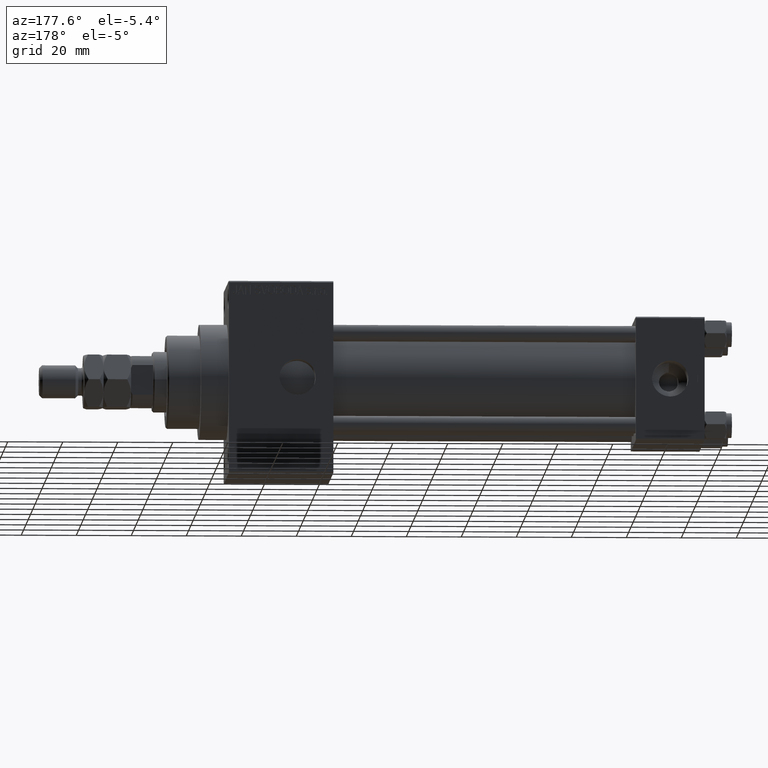
[diagram: clean part render]
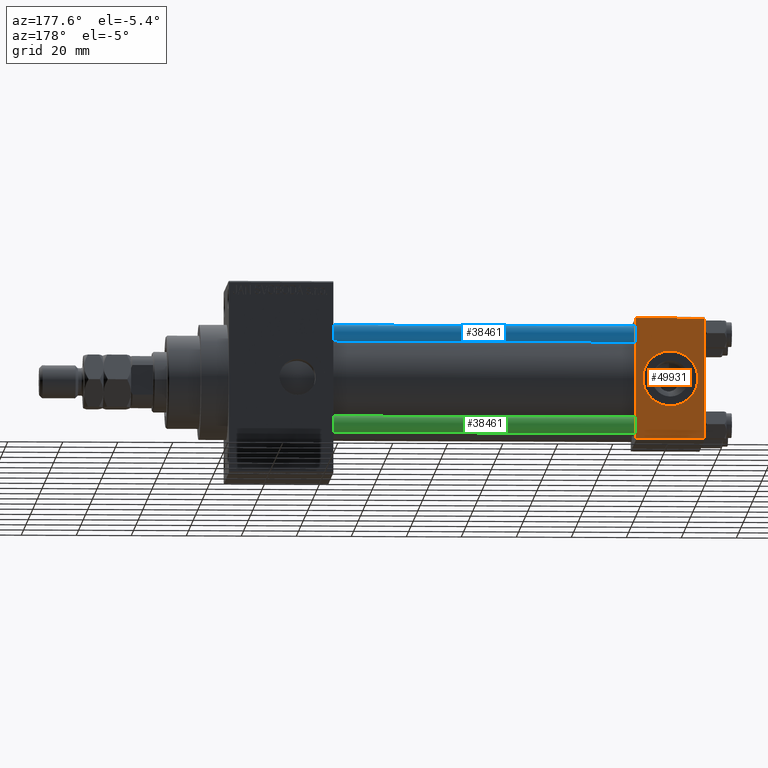
[diagram: same view with three faces highlighted in distinct colors, each labeled with its STEP entity id]
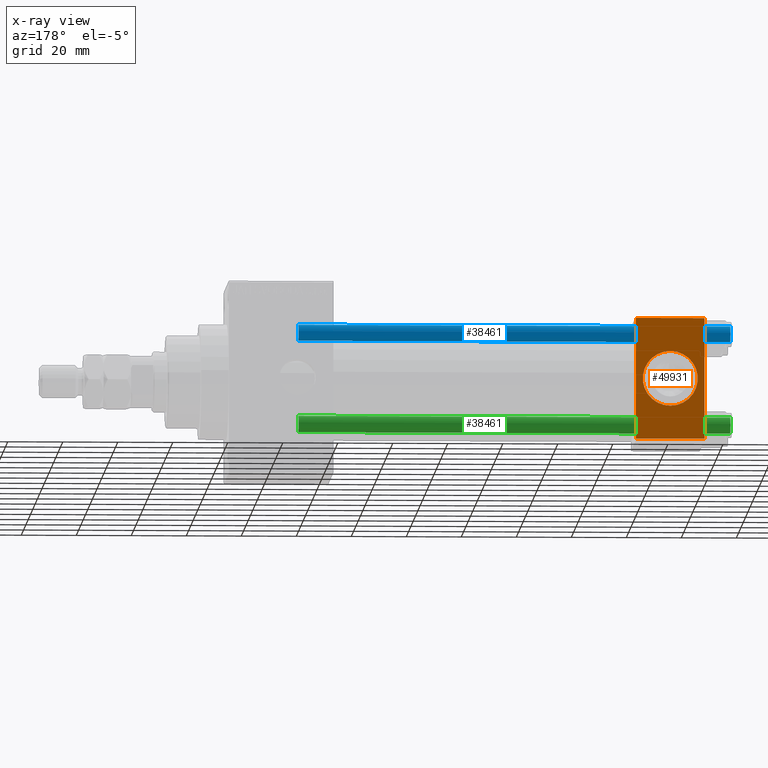
[diagram: x-ray of the same camera — body ghosted, the three highlighted faces saturated]
A machine part, auxiliary view with three faces highlighted in distinct colors.
The next image is the same camera in x-ray (body ghosted, the three faces saturated) — at least one of them is partly hidden behind the body in this view.
Their STEP definitions:

[orange] entity #49931 — the highlighted planar face has unit normal (0, 1, 0).
#467 = ORIENTED_EDGE ( 'NONE', *, *, #27693, .T. ) ;
#481 = DIRECTION ( 'NONE',  ( 0.000000000000000000, 0.000000000000000000, -1.000000000000000000 ) ) ;
#1394 = EDGE_CURVE ( 'NONE', #33170, #2370, #31244, .T. ) ;
#1935 = EDGE_CURVE ( 'NONE', #12063, #8827, #46590, .T. ) ;
#2370 = VERTEX_POINT ( 'NONE', #27886 ) ;
#3290 = LINE ( 'NONE', #41746, #15905 ) ;
#3592 = AXIS2_PLACEMENT_3D ( 'NONE', #30668, #38315, #23769 ) ;
#4155 = CARTESIAN_POINT ( 'NONE',  ( 12.50000000000000000, 22.50000000000000000, 0.000000000000000000 ) ) ;
#4301 = CARTESIAN_POINT ( 'NONE',  ( 0.000000000000000000, 22.50000000000000000, 22.50000000000000355 ) ) ;
#5140 = CARTESIAN_POINT ( 'NONE',  ( 25.00000000000000000, 22.50000000000000000, -21.99999999999998224 ) ) ;
#5284 = CARTESIAN_POINT ( 'NONE',  ( 25.00000000000000000, 22.50000000000000000, -21.99999999999996803 ) ) ;
#5509 = CARTESIAN_POINT ( 'NONE',  ( 25.00000000000000000, 22.50000000000000000, 22.50000000000000355 ) ) ;
#6031 = VECTOR ( 'NONE', #16960, 1000.000000000000000 ) ;
#8051 = EDGE_CURVE ( 'NONE', #2370, #33170, #45423, .T. ) ;
#8420 = ORIENTED_EDGE ( 'NONE', *, *, #1394, .F. ) ;
#8827 = VERTEX_POINT ( 'NONE', #31036 ) ;
#9544 = EDGE_LOOP ( 'NONE', ( #14875, #12719, #28651, #467 ) ) ;
#9645 = AXIS2_PLACEMENT_3D ( 'NONE', #4155, #33794, #12282 ) ;
#11851 = CARTESIAN_POINT ( 'NONE',  ( 0.000000000000000000, 22.50000000000000000, 21.99999999999999645 ) ) ;
#12063 = VERTEX_POINT ( 'NONE', #11851 ) ;
#12271 = LINE ( 'NONE', #5140, #38572 ) ;
#12282 = DIRECTION ( 'NONE',  ( 0.000000000000000000, 0.000000000000000000, 1.000000000000000000 ) ) ;
#12719 = ORIENTED_EDGE ( 'NONE', *, *, #35618, .T. ) ;
#13528 = ORIENTED_EDGE ( 'NONE', *, *, #8051, .F. ) ;
#14875 = ORIENTED_EDGE ( 'NONE', *, *, #24646, .T. ) ;
#15905 = VECTOR ( 'NONE', #30026, 1000.000000000000000 ) ;
#16960 = DIRECTION ( 'NONE',  ( 0.000000000000000000, 0.000000000000000000, -1.000000000000000000 ) ) ;
#18392 = FACE_BOUND ( 'NONE', #48699, .T. ) ;
#22136 = CARTESIAN_POINT ( 'NONE',  ( 25.00000000000000000, 22.50000000000000000, 21.99999999999999645 ) ) ;
#22207 = DIRECTION ( 'NONE',  ( -0.000000000000000000, 1.000000000000000000, 0.000000000000000000 ) ) ;
#23197 = CARTESIAN_POINT ( 'NONE',  ( 12.50000000000000178, 22.50000000000000000, -9.999999999999996447 ) ) ;
#23769 = DIRECTION ( 'NONE',  ( 0.000000000000000000, 0.000000000000000000, 1.000000000000000000 ) ) ;
#24646 = EDGE_CURVE ( 'NONE', #34116, #48167, #37073, .T. ) ;
#27315 = DIRECTION ( 'NONE',  ( -1.000000000000000000, 0.000000000000000000, 0.000000000000000000 ) ) ;
#27568 = AXIS2_PLACEMENT_3D ( 'NONE', #29347, #22207, #44882 ) ;
#27693 = EDGE_CURVE ( 'NONE', #12063, #34116, #3290, .T. ) ;
#27886 = CARTESIAN_POINT ( 'NONE',  ( 12.50000000000000000, 22.50000000000000000, 9.999999999999996447 ) ) ;
#28651 = ORIENTED_EDGE ( 'NONE', *, *, #1935, .F. ) ;
#29347 = CARTESIAN_POINT ( 'NONE',  ( 25.00000000000000000, 22.50000000000000000, 22.50000000000000355 ) ) ;
#30026 = DIRECTION ( 'NONE',  ( 1.000000000000000000, 0.000000000000000000, 0.000000000000000000 ) ) ;
#30668 = CARTESIAN_POINT ( 'NONE',  ( 12.50000000000000000, 22.50000000000000000, 0.000000000000000000 ) ) ;
#31036 = CARTESIAN_POINT ( 'NONE',  ( 0.000000000000000000, 22.50000000000000000, -21.99999999999996803 ) ) ;
#31244 = CIRCLE ( 'NONE', #3592, 9.999999999999996447 ) ;
#33170 = VERTEX_POINT ( 'NONE', #23197 ) ;
#33794 = DIRECTION ( 'NONE',  ( 0.000000000000000000, 1.000000000000000000, 0.000000000000000000 ) ) ;
#33947 = FACE_OUTER_BOUND ( 'NONE', #9544, .T. ) ;
#34116 = VERTEX_POINT ( 'NONE', #22136 ) ;
#35618 = EDGE_CURVE ( 'NONE', #48167, #8827, #12271, .T. ) ;
#37073 = LINE ( 'NONE', #5509, #6031 ) ;
#37250 = PLANE ( 'NONE',  #27568 ) ;
#38315 = DIRECTION ( 'NONE',  ( 0.000000000000000000, 1.000000000000000000, 0.000000000000000000 ) ) ;
#38572 = VECTOR ( 'NONE', #27315, 1000.000000000000000 ) ;
#39432 = VECTOR ( 'NONE', #481, 1000.000000000000000 ) ;
#41746 = CARTESIAN_POINT ( 'NONE',  ( 25.00000000000000000, 22.50000000000000000, 21.99999999999999645 ) ) ;
#44882 = DIRECTION ( 'NONE',  ( 0.000000000000000000, -0.000000000000000000, 1.000000000000000000 ) ) ;
#45423 = CIRCLE ( 'NONE', #9645, 9.999999999999996447 ) ;
#46590 = LINE ( 'NONE', #4301, #39432 ) ;
#48167 = VERTEX_POINT ( 'NONE', #5284 ) ;
#48699 = EDGE_LOOP ( 'NONE', ( #13528, #8420 ) ) ;
#49931 = ADVANCED_FACE ( 'NONE', ( #18392, #33947 ), #37250, .T. ) ;

[blue] entity #38461 — the highlighted cylindrical surface (edge-blend (fillet) strip) has radius 3 mm, axis along (-1, -0, 0).
#429 = AXIS2_PLACEMENT_3D ( 'NONE', #31542, #47087, #19578 ) ;
#1488 = CARTESIAN_POINT ( 'NONE',  ( 0.000000000000000000, 0.000000000000000000, 158.0000000000000000 ) ) ;
#3525 = LINE ( 'NONE', #27196, #45400 ) ;
#5445 = CIRCLE ( 'NONE', #50183, 3.000000000000000444 ) ;
#8110 = DIRECTION ( 'NONE',  ( -0.000000000000000000, -0.000000000000000000, -1.000000000000000000 ) ) ;
#9359 = EDGE_CURVE ( 'NONE', #42161, #42613, #48772, .T. ) ;
#11202 = CARTESIAN_POINT ( 'NONE',  ( -3.000000000000000444, 0.000000000000000000, 0.5000000000000281997 ) ) ;
#12289 = DIRECTION ( 'NONE',  ( -0.000000000000000000, -0.000000000000000000, 1.000000000000000000 ) ) ;
#13857 = CARTESIAN_POINT ( 'NONE',  ( 3.000000000000000444, 3.673940397442060361E-16, 158.0000000000000000 ) ) ;
#14240 = VERTEX_POINT ( 'NONE', #24870 ) ;
#14365 = EDGE_LOOP ( 'NONE', ( #34663, #18262, #48948, #31345 ) ) ;
#15598 = DIRECTION ( 'NONE',  ( 1.000000000000000000, 0.000000000000000000, 0.000000000000000000 ) ) ;
#18262 = ORIENTED_EDGE ( 'NONE', *, *, #9359, .T. ) ;
#19578 = DIRECTION ( 'NONE',  ( 1.000000000000000000, 0.000000000000000000, 0.000000000000000000 ) ) ;
#20772 = CIRCLE ( 'NONE', #429, 3.000000000000000444 ) ;
#20821 = DIRECTION ( 'NONE',  ( -1.000000000000000000, 0.000000000000000000, 0.000000000000000000 ) ) ;
#21567 = CYLINDRICAL_SURFACE ( 'NONE', #40307, 3.000000000000000444 ) ;
#24870 = CARTESIAN_POINT ( 'NONE',  ( -3.000000000000000444, 0.000000000000000000, 157.5000000000000000 ) ) ;
#27196 = CARTESIAN_POINT ( 'NONE',  ( -3.000000000000000444, 0.000000000000000000, 158.0000000000000000 ) ) ;
#28358 = VECTOR ( 'NONE', #41124, 1000.000000000000000 ) ;
#31345 = ORIENTED_EDGE ( 'NONE', *, *, #47273, .F. ) ;
#31498 = VERTEX_POINT ( 'NONE', #11202 ) ;
#31542 = CARTESIAN_POINT ( 'NONE',  ( 0.000000000000000000, 0.000000000000000000, 157.5000000000000000 ) ) ;
#33698 = EDGE_CURVE ( 'NONE', #42613, #31498, #5445, .T. ) ;
#34663 = ORIENTED_EDGE ( 'NONE', *, *, #38278, .T. ) ;
#38278 = EDGE_CURVE ( 'NONE', #14240, #42161, #20772, .T. ) ;
#38461 = ADVANCED_FACE ( 'NONE', ( #48844 ), #21567, .T. ) ;
#40307 = AXIS2_PLACEMENT_3D ( 'NONE', #1488, #48093, #20821 ) ;
#41124 = DIRECTION ( 'NONE',  ( -0.000000000000000000, -0.000000000000000000, -1.000000000000000000 ) ) ;
#42161 = VERTEX_POINT ( 'NONE', #42957 ) ;
#42613 = VERTEX_POINT ( 'NONE', #49676 ) ;
#42869 = CARTESIAN_POINT ( 'NONE',  ( 0.000000000000000000, 0.000000000000000000, 0.5000000000000281997 ) ) ;
#42957 = CARTESIAN_POINT ( 'NONE',  ( 3.000000000000000444, 3.673940397442060361E-16, 157.5000000000000000 ) ) ;
#45400 = VECTOR ( 'NONE', #8110, 1000.000000000000000 ) ;
#47087 = DIRECTION ( 'NONE',  ( 0.000000000000000000, 0.000000000000000000, -1.000000000000000000 ) ) ;
#47273 = EDGE_CURVE ( 'NONE', #14240, #31498, #3525, .T. ) ;
#48093 = DIRECTION ( 'NONE',  ( -0.000000000000000000, -0.000000000000000000, -1.000000000000000000 ) ) ;
#48772 = LINE ( 'NONE', #13857, #28358 ) ;
#48844 = FACE_OUTER_BOUND ( 'NONE', #14365, .T. ) ;
#48948 = ORIENTED_EDGE ( 'NONE', *, *, #33698, .T. ) ;
#49676 = CARTESIAN_POINT ( 'NONE',  ( 3.000000000000000444, 3.673940397442060361E-16, 0.5000000000000281997 ) ) ;
#50183 = AXIS2_PLACEMENT_3D ( 'NONE', #42869, #12289, #15598 ) ;

[green] entity #38461 — the highlighted cylindrical surface (edge-blend (fillet) strip) has radius 3 mm, axis along (1, -0, 0).
#429 = AXIS2_PLACEMENT_3D ( 'NONE', #31542, #47087, #19578 ) ;
#1488 = CARTESIAN_POINT ( 'NONE',  ( 0.000000000000000000, 0.000000000000000000, 158.0000000000000000 ) ) ;
#3525 = LINE ( 'NONE', #27196, #45400 ) ;
#5445 = CIRCLE ( 'NONE', #50183, 3.000000000000000444 ) ;
#8110 = DIRECTION ( 'NONE',  ( -0.000000000000000000, -0.000000000000000000, -1.000000000000000000 ) ) ;
#9359 = EDGE_CURVE ( 'NONE', #42161, #42613, #48772, .T. ) ;
#11202 = CARTESIAN_POINT ( 'NONE',  ( -3.000000000000000444, 0.000000000000000000, 0.5000000000000281997 ) ) ;
#12289 = DIRECTION ( 'NONE',  ( -0.000000000000000000, -0.000000000000000000, 1.000000000000000000 ) ) ;
#13857 = CARTESIAN_POINT ( 'NONE',  ( 3.000000000000000444, 3.673940397442060361E-16, 158.0000000000000000 ) ) ;
#14240 = VERTEX_POINT ( 'NONE', #24870 ) ;
#14365 = EDGE_LOOP ( 'NONE', ( #34663, #18262, #48948, #31345 ) ) ;
#15598 = DIRECTION ( 'NONE',  ( 1.000000000000000000, 0.000000000000000000, 0.000000000000000000 ) ) ;
#18262 = ORIENTED_EDGE ( 'NONE', *, *, #9359, .T. ) ;
#19578 = DIRECTION ( 'NONE',  ( 1.000000000000000000, 0.000000000000000000, 0.000000000000000000 ) ) ;
#20772 = CIRCLE ( 'NONE', #429, 3.000000000000000444 ) ;
#20821 = DIRECTION ( 'NONE',  ( -1.000000000000000000, 0.000000000000000000, 0.000000000000000000 ) ) ;
#21567 = CYLINDRICAL_SURFACE ( 'NONE', #40307, 3.000000000000000444 ) ;
#24870 = CARTESIAN_POINT ( 'NONE',  ( -3.000000000000000444, 0.000000000000000000, 157.5000000000000000 ) ) ;
#27196 = CARTESIAN_POINT ( 'NONE',  ( -3.000000000000000444, 0.000000000000000000, 158.0000000000000000 ) ) ;
#28358 = VECTOR ( 'NONE', #41124, 1000.000000000000000 ) ;
#31345 = ORIENTED_EDGE ( 'NONE', *, *, #47273, .F. ) ;
#31498 = VERTEX_POINT ( 'NONE', #11202 ) ;
#31542 = CARTESIAN_POINT ( 'NONE',  ( 0.000000000000000000, 0.000000000000000000, 157.5000000000000000 ) ) ;
#33698 = EDGE_CURVE ( 'NONE', #42613, #31498, #5445, .T. ) ;
#34663 = ORIENTED_EDGE ( 'NONE', *, *, #38278, .T. ) ;
#38278 = EDGE_CURVE ( 'NONE', #14240, #42161, #20772, .T. ) ;
#38461 = ADVANCED_FACE ( 'NONE', ( #48844 ), #21567, .T. ) ;
#40307 = AXIS2_PLACEMENT_3D ( 'NONE', #1488, #48093, #20821 ) ;
#41124 = DIRECTION ( 'NONE',  ( -0.000000000000000000, -0.000000000000000000, -1.000000000000000000 ) ) ;
#42161 = VERTEX_POINT ( 'NONE', #42957 ) ;
#42613 = VERTEX_POINT ( 'NONE', #49676 ) ;
#42869 = CARTESIAN_POINT ( 'NONE',  ( 0.000000000000000000, 0.000000000000000000, 0.5000000000000281997 ) ) ;
#42957 = CARTESIAN_POINT ( 'NONE',  ( 3.000000000000000444, 3.673940397442060361E-16, 157.5000000000000000 ) ) ;
#45400 = VECTOR ( 'NONE', #8110, 1000.000000000000000 ) ;
#47087 = DIRECTION ( 'NONE',  ( 0.000000000000000000, 0.000000000000000000, -1.000000000000000000 ) ) ;
#47273 = EDGE_CURVE ( 'NONE', #14240, #31498, #3525, .T. ) ;
#48093 = DIRECTION ( 'NONE',  ( -0.000000000000000000, -0.000000000000000000, -1.000000000000000000 ) ) ;
#48772 = LINE ( 'NONE', #13857, #28358 ) ;
#48844 = FACE_OUTER_BOUND ( 'NONE', #14365, .T. ) ;
#48948 = ORIENTED_EDGE ( 'NONE', *, *, #33698, .T. ) ;
#49676 = CARTESIAN_POINT ( 'NONE',  ( 3.000000000000000444, 3.673940397442060361E-16, 0.5000000000000281997 ) ) ;
#50183 = AXIS2_PLACEMENT_3D ( 'NONE', #42869, #12289, #15598 ) ;